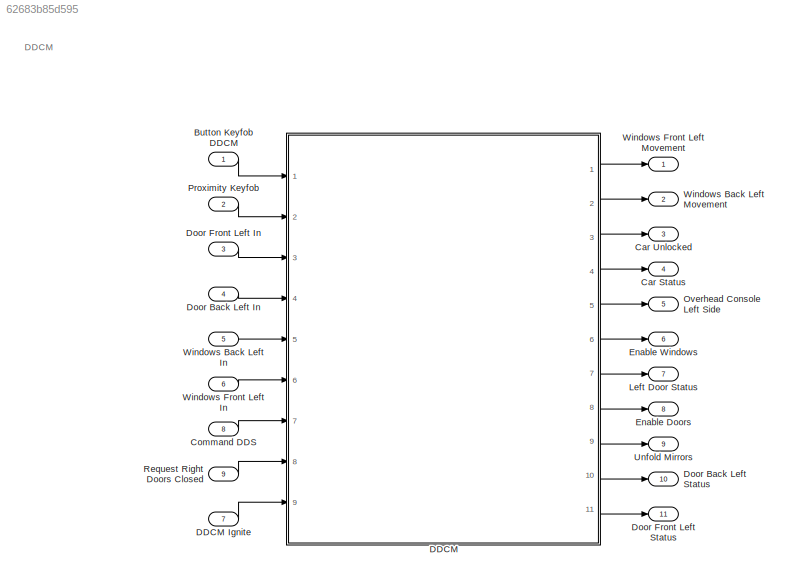
MODEL slx_62683b85d595
KIND model
CONFIG AbsTol = auto
CONFIG EnableMultiTasking = off
CONFIG FixedStep = 0.1
CONFIG MaxStep = auto
CONFIG MinStep = auto
CONFIG RelTol = 1e-3
CONFIG SampleTimeConstraint = Unconstrained
CONFIG Solver = FixedStepAuto
CONFIG SolverName = FixedStepAuto
CONFIG StartTime = 0.0
CONFIG StopTime = 10.0
BLOCK [Inport] Button Keyfob DDCM
  IconDisplay = Port number
BLOCK [Outport] Car Status
  IconDisplay = Port number
  Port = 4
BLOCK [Outport] Car Unlocked
  IconDisplay = Port number
  Port = 3
BLOCK [Inport] Command DDS
  IconDisplay = Port number
  Port = 8
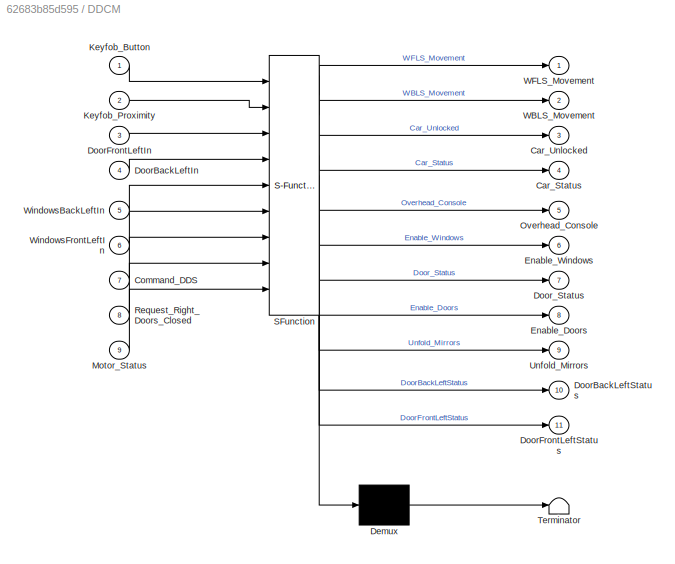
BLOCK [SubSystem] DDCM
  ErrorFcn = Stateflow.Translate.translate
  PermitHierarchicalResolution = ExplicitOnly
  Ports = [9, 11]
  RequestExecContextInheritance = off
  SFBlockType = Chart
  TreatAsAtomicUnit = on
BLOCK [Inport] DDCM Ignite
  IconDisplay = Port number
  Port = 7
BLOCK [Demux] DDCM/ Demux 
  Outputs = 1
  Ports = [1, 1]
BLOCK [S-Function] DDCM/ SFunction 
  EnableBusSupport = on
  FunctionName = sf_sfun
  PortCounts = [9 12]
  Ports = [9, 12]
  SFcnIsStateOwnerBlock = off
  SFunctionDeploymentMode = off
  Tag = Stateflow S-Function 3
BLOCK [Terminator] DDCM/ Terminator 
BLOCK [Outport] DDCM/Car_Status
  IconDisplay = Port number
  Port = 4
BLOCK [Outport] DDCM/Car_Unlocked
  IconDisplay = Port number
  Port = 3
BLOCK [Inport] DDCM/Command_DDS
  IconDisplay = Port number
  Port = 7
BLOCK [Inport] DDCM/DoorBackLeftIn
  IconDisplay = Port number
  Port = 4
BLOCK [Outport] DDCM/DoorBackLeftStatus
  IconDisplay = Port number
  Port = 10
BLOCK [Inport] DDCM/DoorFrontLeftIn
  IconDisplay = Port number
  Port = 3
BLOCK [Outport] DDCM/DoorFrontLeftStatus
  IconDisplay = Port number
  Port = 11
BLOCK [Outport] DDCM/Door_Status
  IconDisplay = Port number
  Port = 7
BLOCK [Outport] DDCM/Enable_Doors
  IconDisplay = Port number
  Port = 8
BLOCK [Outport] DDCM/Enable_Windows
  IconDisplay = Port number
  Port = 6
BLOCK [Inport] DDCM/Keyfob_Button
  IconDisplay = Port number
BLOCK [Inport] DDCM/Keyfob_Proximity
  IconDisplay = Port number
  Port = 2
BLOCK [Inport] DDCM/Motor_Status
  IconDisplay = Port number
  Port = 9
BLOCK [Outport] DDCM/Overhead_Console
  IconDisplay = Port number
  Port = 5
BLOCK [Inport] DDCM/Request_Right_Doors_Closed
  IconDisplay = Port number
  Port = 8
BLOCK [Outport] DDCM/Unfold_Mirrors
  IconDisplay = Port number
  Port = 9
BLOCK [Outport] DDCM/WBLS_Movement
  IconDisplay = Port number
  Port = 2
BLOCK [Outport] DDCM/WFLS_Movement
  IconDisplay = Port number
BLOCK [Inport] DDCM/WindowsBackLeftIn
  IconDisplay = Port number
  Port = 5
BLOCK [Inport] DDCM/WindowsFrontLeftIn
  IconDisplay = Port number
  Port = 6
BLOCK [Inport] Door Back Left In
  IconDisplay = Port number
  Port = 4
BLOCK [Outport] Door Back Left Status
  IconDisplay = Port number
  Port = 10
BLOCK [Inport] Door Front Left In
  IconDisplay = Port number
  Port = 3
BLOCK [Outport] Door Front Left Status
  IconDisplay = Port number
  Port = 11
BLOCK [Outport] Enable Doors
  IconDisplay = Port number
  Port = 8
BLOCK [Outport] Enable Windows
  IconDisplay = Port number
  Port = 6
BLOCK [Outport] Left Door Status
  IconDisplay = Port number
  Port = 7
BLOCK [Outport] Overhead Console Left Side
  IconDisplay = Port number
  Port = 5
BLOCK [Inport] Proximity Keyfob
  IconDisplay = Port number
  Port = 2
BLOCK [Inport] Request Right Doors Closed
  IconDisplay = Port number
  Port = 9
BLOCK [Outport] Unfold Mirrors
  IconDisplay = Port number
  Port = 9
BLOCK [Inport] Windows Back Left In
  IconDisplay = Port number
  Port = 5
BLOCK [Outport] Windows Back Left Movement
  IconDisplay = Port number
  Port = 2
BLOCK [Inport] Windows Front Left In
  IconDisplay = Port number
  Port = 6
BLOCK [Outport] Windows Front Left Movement
  IconDisplay = Port number
ANNOTATION (root): DDCM
LINE Button Keyfob DDCM:1 -> DDCM:1
LINE Command DDS:1 -> DDCM:7
LINE DDCM Ignite:1 -> DDCM:9
LINE DDCM:1 -> Windows Front Left Movement:1
LINE DDCM:10 -> Door Back Left Status:1
LINE DDCM:11 -> Door Front Left Status:1
LINE DDCM:2 -> Windows Back Left Movement:1
LINE DDCM:3 -> Car Unlocked:1
LINE DDCM:4 -> Car Status:1
LINE DDCM:5 -> Overhead Console Left Side:1
LINE DDCM:6 -> Enable Windows:1
LINE DDCM:7 -> Left Door Status:1
LINE DDCM:8 -> Enable Doors:1
LINE DDCM:9 -> Unfold Mirrors:1
LINE Door Back Left In:1 -> DDCM:4
LINE Door Front Left In:1 -> DDCM:3
LINE Proximity Keyfob:1 -> DDCM:2
LINE Request Right Doors Closed:1 -> DDCM:8
LINE Windows Back Left In:1 -> DDCM:5
LINE Windows Front Left In:1 -> DDCM:6
CHART DDCM states=21 transitions=34
  STATE_LABEL 'Left_Doors_Enable'
  STATE_LABEL 'Windows_Switch_When_TOff\nduring:\nif (aux2==1 &&  time ==1)\n    WFLS_Movement = WindowsFrontLeftIn;\n    WBLS_Movement = WindowsBackLeftIn;\nelse\n    WFLS_Movement = -1;\n    WBLS_Movement = -1;\nend'
  STATE_LABEL 'Left_Doors_Enable_2\n\nentry:\n\tCar_Status = 0;\nduring:\n\tif (Enable_Doors == 1)\n\t    DFLS = DoorFrontLeftIn;\n\t    DBLS = DoorBackLeftIn;\n\tend\n\tif (DFLS == 1 | DBLS == 1)\n\t    Overhead_Console = 1;\n\t    Door_Status = 1;\n\telse\n\t    Door_Status = 0;\n\t    Overhead_Console = 0;\n\tend\n\tif (DFLS == 1)\n\t    DoorFrontLeftStatus = 1;\n\telse\n\t    DoorFrontLeftStatus = 0;\n\tend\n\tif (DBLS == 1)\n\t    DoorBackLeftStat...<+48ch>'
  STATE_LABEL 'count'
  STATE_LABEL 'state_count\nentry :\ntime =0;\nduring :\nif(aux2==1)\n    time =1;\nelse\n    time =0;\nend\n'
  STATE_LABEL 'state_count1\nduring :\n'
  STATE_LABEL '[time==1]'
  STATE_LABEL '[after(10,sec)]{ aux2=0}'
  STATE_LABEL 'Windows_Switch_When_TOff\nduring:\nif (aux2==1 &&  time ==1)\n    WFLS_Movement = WindowsFrontLeftIn;\n    WBLS_Movement = WindowsBackLeftIn;\nelse\n    WFLS_Movement = -1;\n    WBLS_Movement = -1;\nend'
  STATE_LABEL 'Left_Doors_Enable_2\n\nentry:\n\tCar_Status = 0;\nduring:\n\tif (Enable_Doors == 1)\n\t    DFLS = DoorFrontLeftIn;\n\t    DBLS = DoorBackLeftIn;\n\tend\n\tif (DFLS == 1 | DBLS == 1)\n\t    Overhead_Console = 1;\n\t    Door_Status = 1;\n\telse\n\t    Door_Status = 0;\n\t    Overhead_Console = 0;\n\tend\n\tif (DFLS == 1)\n\t    DoorFrontLeftStatus = 1;\n\telse\n\t    DoorFrontLeftStatus = 0;\n\tend\n\tif (DBLS == 1)\n\t    DoorBackLeftStat...<+48ch>'
  STATE_LABEL 'count'
  STATE_LABEL 'state_count\nentry :\ntime =0;\nduring :\nif(aux2==1)\n    time =1;\nelse\n    time =0;\nend\n'
  STATE_LABEL 'state_count1\nduring :\n'
  STATE_LABEL '[time==1]'
  STATE_LABEL '[after(10,sec)]{ aux2=0}'
  STATE_LABEL 'state_count\nentry :\ntime =0;\nduring :\nif(aux2==1)\n    time =1;\nelse\n    time =0;\nend\n'
  STATE_LABEL 'state_count1\nduring :\n'
  STATE_LABEL 'State_Unlock_DDCM\nentry:\n\tCar_Unlocked = 1;\n\tUnfold_Mirrors = 1;\n\tEnable_Doors = 1;\n'
  STATE_LABEL 'Wait_Car_On\nentry:\nCar_Status = 1;\naux2 = 0;\nduring:\nif ((Enable_Windows == 1 ||  DDS < 7) && Enable_Doors == 1)\n    AUX = 4 ;\nelseif  (Enable_Windows == 1 | DDS < 7)\n    AUX = 1;\nelseif (Enable_Doors == 1)\n    AUX = 3;\nend\n'
  STATE_LABEL 'Lock_Unlock\nentry:\nDFLS = 0;\nDBLS = 0;\nDoor_Status = 0;\nWFLS_Movement = -1;\nWBLS_Movement = -1;\nClose_Windows = 1;\naux2 = 0;\nEnable_Doors = 0;'
  STATE_LABEL 'Car_Ignite\nentry:\n\tEnable_Windows = 1;\n\tDDS = 0;\n\tIgnite = 1;\nexit :\naux2 = 0;\n'
  STATE_LABEL 'Windows_Closed\nentry:\nWFLS_Movement = -1;\nWBLS_Movement = -1;\nClose_Windows = 0;'
  STATE_LABEL 'DDS_Enable\nentry :\nAUX  = 0 ;\nduring:\n    DDS = Command_DDS;\n    if (DDS == 1)\n        Enable_Windows = 1;\n    elseif (DDS == 6)\n        Enable_Windows = 0;\n        WBLS_Movement = -1;\n        WBLS_Movement = -1;\n    elseif (DDS == 2)\n        Unfold_Mirrors = 0;\n    elseif (DDS == 3)\n        Unfold_Mirrors = 1;\n    elseif (DDS == 4)\n        Enable_Doors = 0;\n    elseif (DDS == 5)\n        Enable_Do...<+29ch>'
  STATE_LABEL 'Windows_Update'
  STATE_LABEL 'Open_WFLS\nentry:\nWFLS_Movement = 0;\n'
  STATE_LABEL 'Open_WBLS\nentry:\nWBLS_Movement = 0;'
  STATE_LABEL 'Windows_Control\nentry:\n\taux1 = 0;\n\tWFLS = WindowsFrontLeftIn;\n\tWBLS = WindowsBackLeftIn;\nduring:\n\taux1 = 1;\n'
  STATE_LABEL 'Left_Doors_Control\nentry:\n\t    DFLS = DoorFrontLeftIn;\n\t    DBLS = DoorBackLeftIn;\nduring:\n\tif (DFLS == 1 | DBLS == 1)\n\t    Overhead_Console = 1;\n\t    Door_Status = 1;\n\telseif (DFLS == 0 & DBLS == 0)\n\t    Overhead_Console = 0;\n\t    Door_Status = 0;\n\tend\n\tif (DFLS == 1)\n\t    DoorFrontLeftStatus = 1;\n\telse\n\t    DoorFrontLeftStatus = 0;\n\tend\n\tif (DBLS == 1)\n\t    DoorBackLeftStatus = 1;\n\telse\n\t    Doo...<+99ch>'
  STATE_LABEL 'Close_WBLS\nentry:\nWBLS_Movement = 1;'
  STATE_LABEL 'Close_WFLS\nentry:\nWFLS_Movement = 1;\n'
  STATE_LABEL 'Closing_Windows\nentry:\nWFLS_Movement = 1;\nWBLS_Movement = 1;'
  STATE_LABEL 'State_Lock_DDCM\nentry:\n\tif (DFLS == 0 & DBLS == 0 & Request_Right_Doors_Closed == 1)\n\t    Car_Unlocked = 0;\n\t    Unfold_Mirrors = 0;\n\t    Enable_Doors = 0;\n\t    Close_Windows = 1;\n\t    Enable_Doors = 0;\n\telse\n\t    Enable_Doors = 1;\n\t    Close_Windows = 0;\n\t    Car_Unlocked = 1;\n\tend\n'
